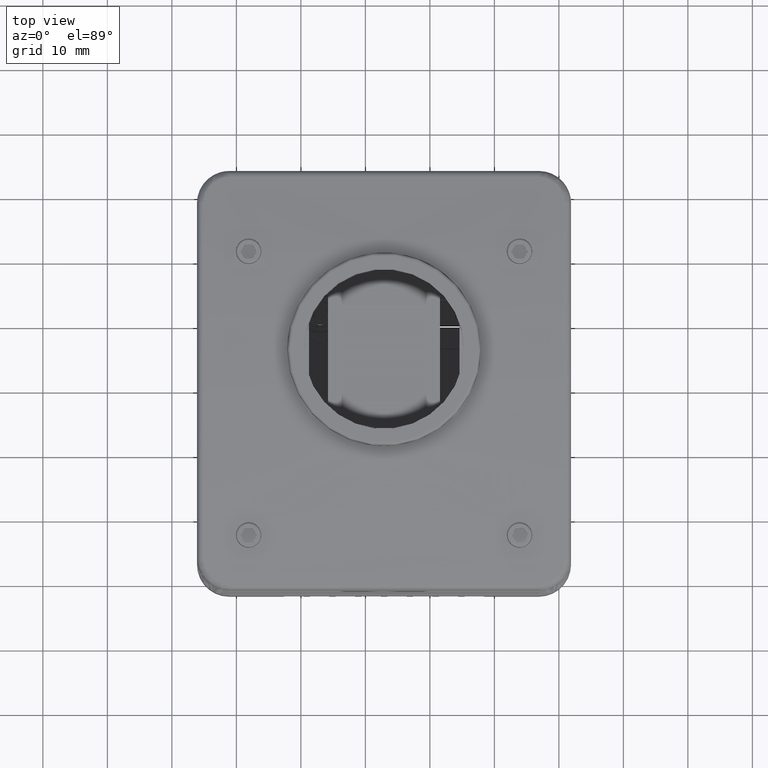
[diagram: clean part render]
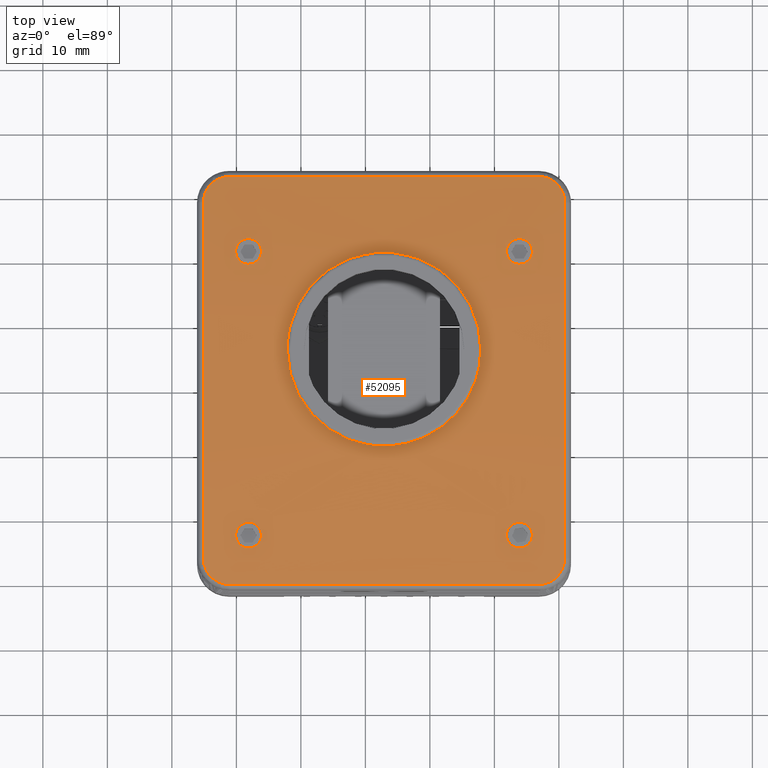
[diagram: same view with one face highlighted and labeled with its STEP entity id]
A machine part, top view. The second image highlights one B-rep face of the part: STEP entity #52095.
In plain terms, the highlighted cylindrical surface (partial cylindrical patch) has radius 246.258 mm, axis along (1, 0, 0).
Its self-contained STEP definition (entity closure, byte-faithful):
#16 = EDGE_CURVE ( 'NONE', #37723, #63241, #7341, .T. ) ;
#407 = CARTESIAN_POINT ( 'NONE',  ( 27.87221905281704800, -28.65296333922606200, 2.481542258418159000 ) ) ;
#429 = B_SPLINE_CURVE_WITH_KNOTS ( 'NONE', 3,
 ( #11356, #43682, #17004, #22384, #59716, #27762, #65133, #33139, #1024, #38501, #6394, #43912, #11817, #49266, #17232, #54572, #22615, #59961, #28001, #65361, #33375, #1258, #38733, #6634, #44144, #12046, #49495, #17475, #54809, #22842 ),
 .UNSPECIFIED., .F., .F.,
 ( 4, 2, 2, 2, 2, 2, 2, 2, 2, 2, 2, 2, 2, 2, 4 ),
 ( 0.0000000000000000000, 0.0003914982582811863100, 0.0007829965165623726300, 0.001174494774843558800, 0.001565993033124745300, 0.002348989549687124900, 0.003131986066249504800, 0.003523484324530700000, 0.003914982582811895100, 0.004306480841093090700, 0.004697979099374286300, 0.005089477357655481000, 0.005480975615936676600, 0.005872473874217872200, 0.006263972132499066900 ),
 .UNSPECIFIED. ) ;
#941 = ORIENTED_EDGE ( 'NONE', *, *, #46395, .T. ) ;
#1024 = CARTESIAN_POINT ( 'NONE',  ( 22.50741972509663200, 21.32087590457438300, 3.229325072555026700 ) ) ;
#1064 = CARTESIAN_POINT ( 'NONE',  ( 22.73694883208375100, -22.99997199358562500, 3.077616166211759800 ) ) ;
#1087 = CARTESIAN_POINT ( 'NONE',  ( -19.00000000000000400, 20.13193937296505700, 3.329767006478465200 ) ) ;
#1258 = CARTESIAN_POINT ( 'NONE',  ( 19.49163073484433200, 21.31994413899537100, 3.229406457088765500 ) ) ;
#1290 = CARTESIAN_POINT ( 'NONE',  ( 20.11290075196628600, -22.20270335062617700, 3.151079743748523400 ) ) ;
#1319 = CARTESIAN_POINT ( 'NONE',  ( -19.20206702972115700, 20.88576982610644400, 3.266762068866864600 ) ) ;
#1550 = CARTESIAN_POINT ( 'NONE',  ( -22.00399631210109800, 21.73464809231767300, 3.193007652865641300 ) ) ;
#1551 = CARTESIAN_POINT ( 'NONE',  ( -22.98739581881234200, 19.74026346499018900, 3.361578185366997900 ) ) ;
#1603 = CARTESIAN_POINT ( 'NONE',  ( 24.00000000000000000, -31.62843589917498800, 2.114457002495436600 ) ) ;
#1788 = CARTESIAN_POINT ( 'NONE',  ( -20.73782990089620500, 17.99975738356088000, 3.495307836988398100 ) ) ;
#1848 = CARTESIAN_POINT ( 'NONE',  ( -14.23599354219704700, -0.02835573895239222300, 4.155706961984092700 ) ) ;
#1874 = VECTOR ( 'NONE', #41021, 1000.000000000000000 ) ;
#1997 = CARTESIAN_POINT ( 'NONE',  ( 14.21405427225119800, 9.617050302707280500, 3.966612506281427900 ) ) ;
#2079 = CARTESIAN_POINT ( 'NONE',  ( -6.201620303658300400, -8.866801893129938600, 3.994407353467100300 ) ) ;
#2235 = CARTESIAN_POINT ( 'NONE',  ( 5.306367802213980400, 18.83860260977376900, 3.432461558192910100 ) ) ;
#2306 = CARTESIAN_POINT ( 'NONE',  ( 6.192979866466197700, -8.870775621002289700, 3.994264351463500800 ) ) ;
#2460 = CARTESIAN_POINT ( 'NONE',  ( -5.275377573058691800, 18.85044770628472200, 3.431553242800611700 ) ) ;
#2539 = CARTESIAN_POINT ( 'NONE',  ( 14.51909141795159300, 0.9068594972434365100, 4.154222431932829800 ) ) ;
#2680 = CARTESIAN_POINT ( 'NONE',  ( -24.00000000000000400, -31.62843589917497400, 2.114457002495437900 ) ) ;
#2694 = CARTESIAN_POINT ( 'NONE',  ( -14.21072304993562500, 9.626929951313435700, 3.966227107716268300 ) ) ;
#2964 = CARTESIAN_POINT ( 'NONE',  ( -19.26305116791623500, -22.99997199358562500, 3.077616166211759800 ) ) ;
#3198 = CARTESIAN_POINT ( 'NONE',  ( -21.88709924803371400, -22.20270335062617700, 3.151079743748523400 ) ) ;
#3441 = CARTESIAN_POINT ( 'NONE',  ( -27.47484094343414200, 29.61887904179538500, 2.366413970540836700 ) ) ;
#3642 = CARTESIAN_POINT ( 'NONE',  ( -27.02085804533519900, -30.25772095195045700, 2.288139553460989600 ) ) ;
#3753 = CARTESIAN_POINT ( 'NONE',  ( -24.00000000000001100, 31.62843589917498800, 2.114457002495436100 ) ) ;
#3829 = CARTESIAN_POINT ( 'NONE',  ( -22.89826951670503500, -24.64301901280795100, 2.917933858223057200 ) ) ;
#4050 = CARTESIAN_POINT ( 'NONE',  ( -20.11270955424230100, -25.79722389188082900, 2.799078373292954500 ) ) ;
#4166 = CARTESIAN_POINT ( 'NONE',  ( 19.39905157878768400, -25.22674305524583700, 2.858564150661086200 ) ) ;
#4341 = CARTESIAN_POINT ( 'NONE',  ( 27.97434677428030600, 28.13556459879583500, 2.541597430123375500 ) ) ;
#4398 = CARTESIAN_POINT ( 'NONE',  ( 22.21967991202564700, -25.59042879121902200, 2.820778767208242900 ) ) ;
#4461 = CARTESIAN_POINT ( 'NONE',  ( 19.01260418118766200, 19.74026346499019600, 3.361578185366997500 ) ) ;
#4571 = CARTESIAN_POINT ( 'NONE',  ( 25.30011364179865300, 31.41942075745012600, 2.141456581381208800 ) ) ;
#4697 = CARTESIAN_POINT ( 'NONE',  ( 21.26217009910380500, 17.99975738356088700, 3.495307836988398500 ) ) ;
#4789 = B_SPLINE_CURVE_WITH_KNOTS ( 'NONE', 3,
 ( #5972, #16815, #59755, #27796, #65164, #33175, #1064, #38531, #6433, #43951, #11852, #49302, #17266, #54613, #22654, #59999, #28031, #65400, #33414, #1290, #38772, #6675, #44184, #12079, #49529, #17514, #54849, #22879, #60228, #28269, #65621, #33638 ),
 .UNSPECIFIED., .F., .F.,
 ( 4, 2, 2, 2, 2, 2, 2, 2, 2, 2, 2, 2, 2, 2, 2, 4 ),
 ( 0.0000000000000000000, 0.0003916619847549815700, 0.0007833239695099631400, 0.001174985954264944800, 0.001566647939019926300, 0.001958309923774907800, 0.002349971908529889500, 0.003133295878039846900, 0.003524957862794825600, 0.003916619847549804300, 0.004308281832304783000, 0.004699943817059762600, 0.005091605801814740400, 0.005483267786569719900, 0.005874929771324697800, 0.006266591756079677300 ),
 .UNSPECIFIED. ) ;
#5173 = FACE_OUTER_BOUND ( 'NONE', #24963, .T. ) ;
#5327 = CARTESIAN_POINT ( 'NONE',  ( 24.26563040659510800, -31.62843589917498100, 2.114457002495436600 ) ) ;
#5509 = CARTESIAN_POINT ( 'NONE',  ( 27.99999999999998900, -27.61212657864482600, 2.601093250368926100 ) ) ;
#5567 = CARTESIAN_POINT ( 'NONE',  ( 25.04018928460663300, -31.49915739890449400, 2.131170397822759600 ) ) ;
#5670 = B_SPLINE_CURVE_WITH_KNOTS ( 'NONE', 3,
 ( #46127, #35349, #8620, #51424, #19429, #56787, #24828, #62192, #30202, #67571, #35580, #3441, #40940, #8848, #46346, #14262, #51649, #19669 ),
 .UNSPECIFIED., .F., .F.,
 ( 4, 2, 2, 2, 2, 2, 2, 2, 4 ),
 ( 0.0000000000000000000, 0.0007854478905420808200, 0.001570895781084161600, 0.002356343671626242400, 0.003141791562168323300, 0.003927239452710403800, 0.004712687343252484700, 0.005498135233794565700, 0.006283583124336646600 ),
 .UNSPECIFIED. ) ;
#5786 = CARTESIAN_POINT ( 'NONE',  ( 28.00000000000000700, -27.87599883398958400, 2.571318394912638400 ) ) ;
#5972 = CARTESIAN_POINT ( 'NONE',  ( 23.00000000000000000, -24.00000000000000400, 2.981723380235535600 ) ) ;
#6394 = CARTESIAN_POINT ( 'NONE',  ( 22.00767491814644900, 21.74717791471865900, 3.191906857225328400 ) ) ;
#6433 = CARTESIAN_POINT ( 'NONE',  ( 22.50784426535909700, -22.67960561343845400, 3.107451143778421800 ) ) ;
#6464 = CARTESIAN_POINT ( 'NONE',  ( -19.00000000000000400, 20.00000000000000000, 3.340518038701737700 ) ) ;
#6634 = CARTESIAN_POINT ( 'NONE',  ( 19.26426283161844600, 21.00208432336254600, 3.256827745967101300 ) ) ;
#6675 = CARTESIAN_POINT ( 'NONE',  ( 19.77880691984193400, -22.41075112826298000, 3.132162092154829700 ) ) ;
#6698 = CARTESIAN_POINT ( 'NONE',  ( -19.40820988067491700, 21.21788980582061900, 3.238260090950952500 ) ) ;
#6837 = FACE_BOUND ( 'NONE', #45967, .T. ) ;
#6928 = CARTESIAN_POINT ( 'NONE',  ( -22.32177218912404700, 21.50676761651978500, 3.213099496578858600 ) ) ;
#6929 = CARTESIAN_POINT ( 'NONE',  ( -22.89815155644264200, 19.35661453699198400, 3.392125023383918400 ) ) ;
#7169 = CARTESIAN_POINT ( 'NONE',  ( -20.11338091784891100, 18.20245117466334200, 3.480373698588378400 ) ) ;
#7241 = CARTESIAN_POINT ( 'NONE',  ( -13.45662458931177400, -1.845274545402938000, 4.147482180308911900 ) ) ;
#7341 = B_SPLINE_CURVE_WITH_KNOTS ( 'NONE', 3,
 ( #62925, #57518, #30710, #30940, #68303, #36291, #4166, #41678, #9577, #47058, #15001, #52376, #20399, #57731, #25796, #63160, #31163, #68532, #36515, #4398, #41910, #9814, #47276, #15241, #52610, #20618, #57966, #26024 ),
 .UNSPECIFIED., .F., .F.,
 ( 4, 2, 2, 2, 2, 2, 2, 2, 2, 2, 2, 2, 2, 4 ),
 ( 0.006266591756079677300, 0.006658299243596522600, 0.007050006731113367900, 0.007833421706147057600, 0.008225129193663895100, 0.008616836681180732600, 0.009008544168697571800, 0.009400251656214409300, 0.01018366663124807600, 0.01057537411876490400, 0.01096708160628173300, 0.01135878909379856400, 0.01175049658131539400, 0.01253391155634904800 ),
 .UNSPECIFIED. ) ;
#7402 = CARTESIAN_POINT ( 'NONE',  ( 13.48862810317668200, 11.43422063286007000, 3.890080018441355800 ) ) ;
#7473 = CARTESIAN_POINT ( 'NONE',  ( -3.904954814888811600, -9.715934760480672900, 3.962349748239482100 ) ) ;
#7628 = CARTESIAN_POINT ( 'NONE',  ( 3.894980379170173800, 19.29395807867614500, 3.397070324937371000 ) ) ;
#7703 = CARTESIAN_POINT ( 'NONE',  ( 7.510619541348610500, -8.193576220672154500, 4.017778933269204900 ) ) ;
#7870 = CARTESIAN_POINT ( 'NONE',  ( -7.509686769907485600, 17.82155279275389500, 3.508905587659430800 ) ) ;
#7944 = CARTESIAN_POINT ( 'NONE',  ( 14.87927035624310300, 2.837394455185770600, 4.138161312050818300 ) ) ;
#8100 = CARTESIAN_POINT ( 'NONE',  ( -14.61783878533372400, 8.199999696371119000, 4.017927202107776100 ) ) ;
#8124 = ORIENTED_EDGE ( 'NONE', *, *, #25214, .T. ) ;
#8378 = CARTESIAN_POINT ( 'NONE',  ( -19.49215573464089600, -22.67960561343845400, 3.107451143778421800 ) ) ;
#8515 = EDGE_CURVE ( 'NONE', #34148, #27591, #429, .T. ) ;
#8602 = CARTESIAN_POINT ( 'NONE',  ( -22.22119308015805600, -22.41075112826298000, 3.132162092154829700 ) ) ;
#8620 = CARTESIAN_POINT ( 'NONE',  ( -24.52671676196103300, 31.60213235724319200, 2.117867612774976900 ) ) ;
#8848 = CARTESIAN_POINT ( 'NONE',  ( -27.79596102399853300, 28.90499269377809100, 2.451867865181610800 ) ) ;
#9053 = CARTESIAN_POINT ( 'NONE',  ( -26.45233784757346000, -30.79605167933717200, 2.220861395131992200 ) ) ;
#9232 = CARTESIAN_POINT ( 'NONE',  ( -22.60094842121230100, -25.22674305524583700, 2.858564150661096800 ) ) ;
#9284 = B_SPLINE_CURVE_WITH_KNOTS ( 'NONE', 3,
 ( #32304, #5327, #37658, #5567, #43076, #10973, #48420, #16393, #53754, #21765, #59104, #27152, #64519, #32538, #407, #37885, #5786, #43304 ),
 .UNSPECIFIED., .F., .F.,
 ( 4, 2, 2, 2, 2, 2, 2, 2, 4 ),
 ( 0.0000000000000000000, 0.0007854478905420811500, 0.001570895781084162300, 0.002356343671626243700, 0.003141791562168324600, 0.003927239452710405500, 0.004712687343252487300, 0.005498135233794568300, 0.006283583124336649200 ),
 .UNSPECIFIED. ) ;
#9458 = CARTESIAN_POINT ( 'NONE',  ( -19.78032008797432400, -25.59042879121901500, 2.820778767208243400 ) ) ;
#9477 = B_SPLINE_CURVE_WITH_KNOTS ( 'NONE', 3,
 ( #51618, #19630, #56985, #25043, #62389, #30393, #67777, #35783, #3642, #41135, #9053, #46531, #14453, #51848, #19868, #57220, #25276, #62623 ),
 .UNSPECIFIED., .F., .F.,
 ( 4, 2, 2, 2, 2, 2, 2, 2, 4 ),
 ( 0.0000000000000000000, 0.0007855308358839515700, 0.001571061671767903100, 0.002356592507651854800, 0.003142123343535806300, 0.003927654179419757700, 0.004713185015303709600, 0.005498715851187660700, 0.006284246687071612600 ),
 .UNSPECIFIED. ) ;
#9577 = CARTESIAN_POINT ( 'NONE',  ( 19.77759171015288300, -25.58835628398693600, 2.820995398234102500 ) ) ;
#9633 = CARTESIAN_POINT ( 'NONE',  ( 19.00000000000001100, 19.86973843002554900, 3.351132355753393600 ) ) ;
#9757 = CARTESIAN_POINT ( 'NONE',  ( 27.99999999999999300, 27.61212657864483000, 2.601093250368926100 ) ) ;
#9814 = CARTESIAN_POINT ( 'NONE',  ( 22.50716778263350200, -25.32116855462352600, 2.848768887152167900 ) ) ;
#9880 = CARTESIAN_POINT ( 'NONE',  ( 19.10184844355736200, 19.35661453699198700, 3.392125023383918400 ) ) ;
#10003 = CARTESIAN_POINT ( 'NONE',  ( 24.52843681762643900, 31.60212272461534200, 2.117869070052724300 ) ) ;
#10127 = CARTESIAN_POINT ( 'NONE',  ( 21.88661908215110000, 18.20245117466335200, 3.480373698588380200 ) ) ;
#10200 = CARTESIAN_POINT ( 'NONE',  ( -15.00000000000000000, 4.799999999999999800, 4.107231761522982100 ) ) ;
#10246 = VERTEX_POINT ( 'NONE', #1603 ) ;
#10379 = CARTESIAN_POINT ( 'NONE',  ( 23.99999999999999300, 31.62843589917501000, 2.114457002495433900 ) ) ;
#10496 = EDGE_CURVE ( 'NONE', #36730, #65070, #5670, .T. ) ;
#10973 = CARTESIAN_POINT ( 'NONE',  ( 25.78072699913088800, -31.21816811858529000, 2.167261298425407800 ) ) ;
#11356 = CARTESIAN_POINT ( 'NONE',  ( 23.00000000000000000, 20.00000000000000400, 3.340518038701738100 ) ) ;
#11817 = CARTESIAN_POINT ( 'NONE',  ( 21.26213794501796500, 21.99989338468088100, 3.169350167990354200 ) ) ;
#11852 = CARTESIAN_POINT ( 'NONE',  ( 22.22281019386883800, -22.41190650544010400, 3.132056700207945400 ) ) ;
#11968 = VERTEX_POINT ( 'NONE', #57630 ) ;
#12046 = CARTESIAN_POINT ( 'NONE',  ( 19.10169595905753300, 20.64312121272049100, 3.287295279596437900 ) ) ;
#12079 = CARTESIAN_POINT ( 'NONE',  ( 19.49123508801386300, -22.68050545850213200, 3.107368325165674100 ) ) ;
#12103 = CARTESIAN_POINT ( 'NONE',  ( -19.76919302924002200, 21.59788101318937200, 3.205146737904964300 ) ) ;
#12351 = CARTESIAN_POINT ( 'NONE',  ( -22.59114551453944100, 21.21869293113203300, 3.238190476083231400 ) ) ;
#12354 = CARTESIAN_POINT ( 'NONE',  ( -22.60045940532211600, 18.77260140591930000, 3.437513924374464100 ) ) ;
#12469 = DIRECTION ( 'NONE',  ( 1.000000000000000000, 1.067522139062650400E-016, -0.0000000000000000000 ) ) ;
#12597 = CARTESIAN_POINT ( 'NONE',  ( -19.78103149086517500, 18.40902943654939200, 3.464980599821954500 ) ) ;
#12661 = CARTESIAN_POINT ( 'NONE',  ( -12.49090242185871300, -3.548172253586010100, 4.129457947598941000 ) ) ;
#12807 = CARTESIAN_POINT ( 'NONE',  ( 12.20647926226417800, 13.53190903967400200, 3.782290952021368100 ) ) ;
#12888 = CARTESIAN_POINT ( 'NONE',  ( -1.973926540562157500, -10.07776965838165700, 3.947725777932891600 ) ) ;
#13049 = CARTESIAN_POINT ( 'NONE',  ( 1.975595561481464000, 19.70159591388245000, 3.364726273962339600 ) ) ;
#13130 = CARTESIAN_POINT ( 'NONE',  ( 9.149153876633155500, -7.126771435546866800, 4.051469334608190900 ) ) ;
#13285 = CARTESIAN_POINT ( 'NONE',  ( -9.124274822374694300, 16.71599208700052900, 3.586221455940271400 ) ) ;
#13361 = CARTESIAN_POINT ( 'NONE',  ( 15.00000000000000000, 4.311729801633215500, 4.116750791313105400 ) ) ;
#13399 = VERTEX_POINT ( 'NONE', #10200 ) ;
#13514 = CARTESIAN_POINT ( 'NONE',  ( -15.00000000000000400, 5.782011466447264600, 4.088087041172159700 ) ) ;
#13768 = CARTESIAN_POINT ( 'NONE',  ( -19.77718980613115100, -22.41190650544010400, 3.132056700207972900 ) ) ;
#14019 = CARTESIAN_POINT ( 'NONE',  ( -22.50876491198613400, -22.68050545850213200, 3.107368325165674100 ) ) ;
#14094 = EDGE_CURVE ( 'NONE', #63241, #37723, #4789, .T. ) ;
#14262 = CARTESIAN_POINT ( 'NONE',  ( -27.97434975268739500, 28.13692876086082600, 2.541443383217059500 ) ) ;
#14300 = VERTEX_POINT ( 'NONE', #2680 ) ;
#14453 = CARTESIAN_POINT ( 'NONE',  ( -25.78243110002373900, -31.21720286600233500, 2.167384488437091400 ) ) ;
#14645 = CARTESIAN_POINT ( 'NONE',  ( -22.22240828984711300, -25.58835628398694000, 2.820995398234102500 ) ) ;
#14886 = CARTESIAN_POINT ( 'NONE',  ( -19.49283221736648400, -25.32116855462351900, 2.848768887152167900 ) ) ;
#14958 = B_SPLINE_CURVE_WITH_KNOTS ( 'NONE', 3,
 ( #44208, #54637, #1551, #39043, #6929, #44445, #12354, #49778, #17760, #55119, #23146, #60495, #28536, #65884, #33905, #1788, #39271, #7169, #44676, #12597, #50014, #17994, #55351, #23379, #60738, #28757, #66132, #34150 ),
 .UNSPECIFIED., .F., .F.,
 ( 4, 2, 2, 2, 2, 2, 2, 2, 2, 2, 2, 2, 2, 4 ),
 ( 0.006263972132499066000, 0.006655271112561828700, 0.007046570092624592300, 0.007829168052750117700, 0.008220467032812881300, 0.008611766012875643100, 0.009003064992938406700, 0.009394363973001168500, 0.01017696193312670600, 0.01056826091318947100, 0.01095955989325224000, 0.01135085887331500900, 0.01174215785337777600, 0.01252475581350331200 ),
 .UNSPECIFIED. ) ;
#15001 = CARTESIAN_POINT ( 'NONE',  ( 20.11009135520260600, -25.79589541836515600, 2.799218312178693800 ) ) ;
#15179 = CARTESIAN_POINT ( 'NONE',  ( 27.79777778947022100, 28.89996163710529900, 2.452464179005771100 ) ) ;
#15241 = CARTESIAN_POINT ( 'NONE',  ( 22.73563237458568100, -25.00239245500736400, 2.881518551110850100 ) ) ;
#15301 = CARTESIAN_POINT ( 'NONE',  ( 19.39954059467789100, 18.77260140591930700, 3.437513924374464600 ) ) ;
#15418 = CARTESIAN_POINT ( 'NONE',  ( 23.99999999999999300, 31.62843589917501000, 2.114457002495433900 ) ) ;
#15540 = CARTESIAN_POINT ( 'NONE',  ( 22.21896850913482900, 18.40902943654939200, 3.464980599821953600 ) ) ;
#15571 = B_SPLINE_CURVE_WITH_KNOTS ( 'NONE', 3,
 ( #63220, #9633, #4461, #41966, #9880, #47346, #15301, #52668, #20683, #58023, #26078, #63450, #31450, #68822, #36815, #4697, #42211, #10127, #47573, #15540, #52895, #20923, #58262, #26304, #63683, #31689, #69037, #37038 ),
 .UNSPECIFIED., .F., .F.,
 ( 4, 2, 2, 2, 2, 2, 2, 2, 2, 2, 2, 2, 2, 4 ),
 ( 0.006263972132499066900, 0.006655271112561839100, 0.007046570092624610500, 0.007829168052750154100, 0.008220467032812917700, 0.008611766012875683000, 0.009003064992938448300, 0.009394363973001211900, 0.01017696193312674100, 0.01056826091318950600, 0.01095955989325226800, 0.01135085887331503300, 0.01174215785337779900, 0.01252475581350331700 ),
 .UNSPECIFIED. ) ;
#16393 = CARTESIAN_POINT ( 'NONE',  ( 26.44575144505234500, -30.80106261015309600, 2.220229118654111700 ) ) ;
#16634 = CARTESIAN_POINT ( 'NONE',  ( -19.00000000000000400, 20.00000000000000000, 3.340518038701737700 ) ) ;
#16815 = CARTESIAN_POINT ( 'NONE',  ( 23.00000000000000400, -23.86820121851414100, 2.994629738325983700 ) ) ;
#17004 = CARTESIAN_POINT ( 'NONE',  ( 22.98707199814070600, 20.26167658526000200, 3.319088400453707300 ) ) ;
#17175 = VECTOR ( 'NONE', #64235, 1000.000000000000000 ) ;
#17217 = CARTESIAN_POINT ( 'NONE',  ( -18.99999999999998900, -24.00000000000000400, 2.981723380235535600 ) ) ;
#17232 = CARTESIAN_POINT ( 'NONE',  ( 20.73744359348957300, 21.98701603862111800, 3.170506212369487400 ) ) ;
#17266 = CARTESIAN_POINT ( 'NONE',  ( 21.88758362488827900, -22.20299710870211700, 3.151053107074169200 ) ) ;
#17345 = CARTESIAN_POINT ( 'NONE',  ( -94.03568087032886100, -2.199666958254316200E-014, -242.1045150059093800 ) ) ;
#17475 = CARTESIAN_POINT ( 'NONE',  ( 19.01303599880151700, 20.26267213394521600, 3.319006382137905200 ) ) ;
#17514 = CARTESIAN_POINT ( 'NONE',  ( 19.26395656080026000, -22.99844658000180400, 3.077759104127113500 ) ) ;
#17537 = CARTESIAN_POINT ( 'NONE',  ( -20.47415036006604800, 21.94718298126380800, 3.174092877652904500 ) ) ;
#17622 = EDGE_LOOP ( 'NONE', ( #61753, #51015 ) ) ;
#17759 = CARTESIAN_POINT ( 'NONE',  ( -22.79818909887873300, 20.88525651129109000, 3.266805789855834300 ) ) ;
#17760 = CARTESIAN_POINT ( 'NONE',  ( -22.22164681675882400, 18.41106141672282700, 3.464828361938549600 ) ) ;
#17902 = ORIENTED_EDGE ( 'NONE', *, *, #64291, .T. ) ;
#17984 = CARTESIAN_POINT ( 'NONE',  ( 14.99999999999999800, 5.777352010078989700, 4.088177879204304900 ) ) ;
#17994 = CARTESIAN_POINT ( 'NONE',  ( -19.49337377550867200, 18.67821067692289100, 3.444659838738893100 ) ) ;
#18062 = CARTESIAN_POINT ( 'NONE',  ( -11.28493741444041400, -5.094017131088216700, 4.101617256451033800 ) ) ;
#18228 = CARTESIAN_POINT ( 'NONE',  ( 11.29083833626296100, 14.68722071481472100, 3.715935619893363300 ) ) ;
#18303 = CARTESIAN_POINT ( 'NONE',  ( -0.4994122282866592700, -10.19966486074280200, 3.942698112038740100 ) ) ;
#18330 = AXIS2_PLACEMENT_3D ( 'NONE', #17345, #65697, #60305 ) ;
#18463 = CARTESIAN_POINT ( 'NONE',  ( -0.4755612601192628600, 19.80055237248668500, 3.356688389520746000 ) ) ;
#18543 = CARTESIAN_POINT ( 'NONE',  ( 11.30745669339352900, -5.105686270908850400, 4.102079397850054000 ) ) ;
#18684 = CARTESIAN_POINT ( 'NONE',  ( -10.25537100110211800, 15.75756613488116300, 3.649598249697834100 ) ) ;
#19197 = CARTESIAN_POINT ( 'NONE',  ( -20.11241637511171700, -22.20299710870211700, 3.151053107074169600 ) ) ;
#19418 = CARTESIAN_POINT ( 'NONE',  ( -22.73604343919973300, -22.99844658000180400, 3.077759104127114000 ) ) ;
#19429 = CARTESIAN_POINT ( 'NONE',  ( -25.29530147918768200, 31.42118414353466000, 2.141229903952491100 ) ) ;
#19457 = EDGE_CURVE ( 'NONE', #27163, #13399, #63126, .T. ) ;
#19473 = FACE_BOUND ( 'NONE', #17622, .T. ) ;
#19630 = CARTESIAN_POINT ( 'NONE',  ( -28.00000000000000400, -27.87603042080604600, 2.571314830714912100 ) ) ;
#19669 = CARTESIAN_POINT ( 'NONE',  ( -28.00000000000001400, 27.61212657864483000, 2.601093250368926100 ) ) ;
#19868 = CARTESIAN_POINT ( 'NONE',  ( -25.04825108139884200, -31.49719894914891000, 2.131423182568792400 ) ) ;
#20068 = CARTESIAN_POINT ( 'NONE',  ( -21.88990864479738700, -25.79589541836515200, 2.799218312178694700 ) ) ;
#20291 = CARTESIAN_POINT ( 'NONE',  ( -19.26436762541430900, -25.00239245500736000, 2.881518551110849600 ) ) ;
#20399 = CARTESIAN_POINT ( 'NONE',  ( 20.47958829738196200, -25.93552213206617200, 2.784467192670569100 ) ) ;
#20428 = CARTESIAN_POINT ( 'NONE',  ( 23.00000000000000000, -24.00000000000000400, 2.981723380235535600 ) ) ;
#20567 = CARTESIAN_POINT ( 'NONE',  ( 27.47693827994098100, 29.61494226548044000, 2.366889549501529200 ) ) ;
#20618 = CARTESIAN_POINT ( 'NONE',  ( 22.94716509994644200, -24.52552524818331700, 2.929811490816401700 ) ) ;
#20683 = CARTESIAN_POINT ( 'NONE',  ( 19.77835318324117300, 18.41106141672283100, 3.464828361938577100 ) ) ;
#20923 = CARTESIAN_POINT ( 'NONE',  ( 22.50662622449133800, 18.67821067692289100, 3.444659838738894000 ) ) ;
#21311 = ORIENTED_EDGE ( 'NONE', *, *, #21402, .F. ) ;
#21402 = EDGE_CURVE ( 'NONE', #27591, #34148, #15571, .T. ) ;
#21765 = CARTESIAN_POINT ( 'NONE',  ( 27.01887237828043100, -30.25998771389107100, 2.287858703519776200 ) ) ;
#22384 = CARTESIAN_POINT ( 'NONE',  ( 22.93641816450074700, 20.51692789947903600, 3.297881715428792000 ) ) ;
#22572 = CARTESIAN_POINT ( 'NONE',  ( -28.00000000000001400, 27.61212657864483000, 2.601093250368926100 ) ) ;
#22615 = CARTESIAN_POINT ( 'NONE',  ( 20.35559520277297100, 21.89788033175731000, 3.178484047571892300 ) ) ;
#22654 = CARTESIAN_POINT ( 'NONE',  ( 21.26226326066735700, -22.00010908814864400, 3.169330820325750900 ) ) ;
#22761 = B_SPLINE_CURVE_WITH_KNOTS ( 'NONE', 3,
 ( #6464, #1087, #28058, #65423, #33437, #1319, #38800, #6698, #44205, #12103, #49556, #17537, #54876, #22904, #60258, #28295, #65646, #33659, #1550, #39039, #6928, #44439, #12351, #49775, #17759, #55116, #23142, #60494, #28532, #65879 ),
 .UNSPECIFIED., .F., .F.,
 ( 4, 2, 2, 2, 2, 2, 2, 2, 2, 2, 2, 2, 2, 2, 4 ),
 ( 0.0000000000000000000, 0.0003914982582811862600, 0.0007829965165623725200, 0.001174494774843558800, 0.001565993033124745000, 0.002348989549687124900, 0.003131986066249504400, 0.003523484324530699500, 0.003914982582811895100, 0.004306480841093090700, 0.004697979099374285400, 0.005089477357655481000, 0.005480975615936675700, 0.005872473874217871300, 0.006263972132499066000 ),
 .UNSPECIFIED. ) ;
#22842 = CARTESIAN_POINT ( 'NONE',  ( 19.00000000000000400, 20.00000000000000400, 3.340518038701734600 ) ) ;
#22879 = CARTESIAN_POINT ( 'NONE',  ( 19.10153916628038600, -23.35735161046389400, 3.043834271633272700 ) ) ;
#22904 = CARTESIAN_POINT ( 'NONE',  ( -21.12984692994344400, 22.00005305876153700, 3.169335845918647400 ) ) ;
#23142 = CARTESIAN_POINT ( 'NONE',  ( -22.93599824917251700, 20.51858786257585300, 3.297743102370501100 ) ) ;
#23146 = CARTESIAN_POINT ( 'NONE',  ( -21.88916392506543900, 18.20373968118286000, 3.480278199912674200 ) ) ;
#23259 = EDGE_CURVE ( 'NONE', #27777, #42440, #32275, .T. ) ;
#23379 = CARTESIAN_POINT ( 'NONE',  ( -19.26471738211007400, 18.99699682071876300, 3.420209462339329300 ) ) ;
#23385 = ORIENTED_EDGE ( 'NONE', *, *, #67540, .T. ) ;
#23450 = CARTESIAN_POINT ( 'NONE',  ( -9.906474773321173500, -6.506225232138236300, 4.069036955791190700 ) ) ;
#23604 = CARTESIAN_POINT ( 'NONE',  ( 9.910824197514760000, 16.07018853548542100, 3.629306969322572100 ) ) ;
#23677 = CARTESIAN_POINT ( 'NONE',  ( 1.941478404920017600, -10.10649943863787000, 3.946617030911952400 ) ) ;
#23695 = ORIENTED_EDGE ( 'NONE', *, *, #51582, .T. ) ;
#23833 = CARTESIAN_POINT ( 'NONE',  ( -1.952291687551653600, 19.68054662179455900, 3.366344054082508500 ) ) ;
#23907 = CARTESIAN_POINT ( 'NONE',  ( 12.74253536574609000, -3.128839949783828600, 4.134473874734140100 ) ) ;
#24070 = CIRCLE ( 'NONE', #51445, 246.2585313167246300 ) ;
#24071 = CARTESIAN_POINT ( 'NONE',  ( -11.91709197700933500, 13.96220287979920000, 3.759243774390496700 ) ) ;
#24582 = CARTESIAN_POINT ( 'NONE',  ( -20.73773673933264000, -22.00010908814864400, 3.169330820325750900 ) ) ;
#24812 = CARTESIAN_POINT ( 'NONE',  ( -22.89846083371960700, -23.35735161046389400, 3.043834271633274000 ) ) ;
#24828 = CARTESIAN_POINT ( 'NONE',  ( -26.01075544475265000, 31.09403930490469700, 2.183116218336263800 ) ) ;
#24920 = CARTESIAN_POINT ( 'NONE',  ( -94.03568087032886100, 31.62843589917498800, 2.114457002495434800 ) ) ;
#24963 = EDGE_LOOP ( 'NONE', ( #65768, #8124, #941, #23385, #17902, #32039, #23695, #56743 ) ) ;
#25043 = CARTESIAN_POINT ( 'NONE',  ( -27.87381570747499300, -28.64625351569159400, 2.482325369593488600 ) ) ;
#25214 = EDGE_CURVE ( 'NONE', #49071, #14300, #9477, .T. ) ;
#25232 = CARTESIAN_POINT ( 'NONE',  ( -22.99999999999998200, -24.13020738896694800, 2.968972858803613900 ) ) ;
#25276 = CARTESIAN_POINT ( 'NONE',  ( -24.26566163447590800, -31.62843589917498800, 2.114457002495453900 ) ) ;
#25459 = CARTESIAN_POINT ( 'NONE',  ( -21.52041170261803100, -25.93552213206617600, 2.784467192670570000 ) ) ;
#25659 = EDGE_LOOP ( 'NONE', ( #67880, #31350 ) ) ;
#25689 = CARTESIAN_POINT ( 'NONE',  ( -19.05283490005355400, -24.52552524818331400, 2.929811490816401700 ) ) ;
#25796 = CARTESIAN_POINT ( 'NONE',  ( 20.86594142301226600, -25.99987103348722400, 2.777642270869048200 ) ) ;
#25974 = CARTESIAN_POINT ( 'NONE',  ( 27.02085804533518900, 30.25772095195046100, 2.288139553460989600 ) ) ;
#26024 = CARTESIAN_POINT ( 'NONE',  ( 23.00000000000000000, -24.00000000000000400, 2.981723380235535600 ) ) ;
#26078 = CARTESIAN_POINT ( 'NONE',  ( 20.11083607493456800, 18.20373968118287100, 3.480278199912675100 ) ) ;
#26304 = CARTESIAN_POINT ( 'NONE',  ( 22.73528261788994000, 18.99699682071875600, 3.420209462339330700 ) ) ;
#27152 = CARTESIAN_POINT ( 'NONE',  ( 27.47484094343413500, -29.61887904179537000, 2.366413970540838500 ) ) ;
#27163 = VERTEX_POINT ( 'NONE', #51927 ) ;
#27307 = CARTESIAN_POINT ( 'NONE',  ( 27.99999999999998200, -2.455300919844099900E-015, -242.1045150059093800 ) ) ;
#27591 = VERTEX_POINT ( 'NONE', #29269 ) ;
#27762 = CARTESIAN_POINT ( 'NONE',  ( 22.79793297027884300, 20.88576982610644400, 3.266762068866864600 ) ) ;
#27777 = VERTEX_POINT ( 'NONE', #52320 ) ;
#27796 = CARTESIAN_POINT ( 'NONE',  ( 22.93652616663674900, -23.48350053876235000, 3.031785581161336600 ) ) ;
#28001 = CARTESIAN_POINT ( 'NONE',  ( 19.99600368789890600, 21.73464809231767700, 3.193007652865641700 ) ) ;
#28031 = CARTESIAN_POINT ( 'NONE',  ( 20.73735666503420600, -22.01299151127745200, 3.168176327148032500 ) ) ;
#28058 = CARTESIAN_POINT ( 'NONE',  ( -19.01292800185929700, 20.26167658526000200, 3.319088400453707300 ) ) ;
#28269 = CARTESIAN_POINT ( 'NONE',  ( 19.01300751311832500, -23.73758650412503000, 3.007311998684650600 ) ) ;
#28295 = CARTESIAN_POINT ( 'NONE',  ( -21.51955622712066000, 21.93577631228335500, 3.175094063999241100 ) ) ;
#28532 = CARTESIAN_POINT ( 'NONE',  ( -23.00000000000000400, 20.13032790874589400, 3.329898316059219700 ) ) ;
#28536 = CARTESIAN_POINT ( 'NONE',  ( -21.51984902718889000, 18.06433528549388600, 3.490567792168472600 ) ) ;
#28603 = CARTESIAN_POINT ( 'NONE',  ( -14.87848426340983800, 2.831695392791387300, 4.138224880148393400 ) ) ;
#28733 = LINE ( 'NONE', #24920, #1874 ) ;
#28748 = CARTESIAN_POINT ( 'NONE',  ( 14.90538755638911700, 6.747237920932428200, 4.063448063579287800 ) ) ;
#28757 = CARTESIAN_POINT ( 'NONE',  ( -19.05289038659296000, 19.47418054135758300, 3.382915784074730100 ) ) ;
#28833 = CARTESIAN_POINT ( 'NONE',  ( -7.937507208362715600, -7.937089843104909700, 4.026223382288883100 ) ) ;
#28983 = CARTESIAN_POINT ( 'NONE',  ( 8.752579579403496600, 16.99158793236466300, 3.567269234486879700 ) ) ;
#29065 = CARTESIAN_POINT ( 'NONE',  ( 3.874969385625168300, -9.699222203278449000, 3.962975240198507400 ) ) ;
#29168 = AXIS2_PLACEMENT_3D ( 'NONE', #44555, #12469, #49894 ) ;
#29226 = CARTESIAN_POINT ( 'NONE',  ( -3.395968669420534400, 19.41870035151968900, 3.387210750510877100 ) ) ;
#29265 = CARTESIAN_POINT ( 'NONE',  ( -18.99999999999998900, -24.00000000000000400, 2.981723380235535600 ) ) ;
#29269 = CARTESIAN_POINT ( 'NONE',  ( 19.00000000000000400, 20.00000000000000400, 3.340518038701734600 ) ) ;
#29304 = CARTESIAN_POINT ( 'NONE',  ( 13.45887836782972400, -1.840847765152563000, 4.147518311767524500 ) ) ;
#29452 = CARTESIAN_POINT ( 'NONE',  ( -12.99165503756557200, 12.31404532418534200, 3.846330940571229400 ) ) ;
#29469 = VERTEX_POINT ( 'NONE', #16634 ) ;
#29730 = CARTESIAN_POINT ( 'NONE',  ( -19.06347383336323600, -23.48350053876234300, 3.031785581161337000 ) ) ;
#29951 = CARTESIAN_POINT ( 'NONE',  ( -21.26264333496578400, -22.01299151127745200, 3.168176327148032500 ) ) ;
#30186 = CARTESIAN_POINT ( 'NONE',  ( -22.98699248688165800, -23.73758650412503000, 3.007311998684650600 ) ) ;
#30202 = CARTESIAN_POINT ( 'NONE',  ( -26.65113079792893600, 30.63095125606688300, 2.241641110618412600 ) ) ;
#30347 = ORIENTED_EDGE ( 'NONE', *, *, #16, .F. ) ;
#30393 = CARTESIAN_POINT ( 'NONE',  ( -27.59878492711158800, -29.38481079694166100, 2.394680790529018800 ) ) ;
#30710 = CARTESIAN_POINT ( 'NONE',  ( 19.01259379949340900, -24.25961578866380800, 2.956195815281272400 ) ) ;
#30827 = CARTESIAN_POINT ( 'NONE',  ( -21.13405857698772600, -25.99987103348721400, 2.777642270869047400 ) ) ;
#30940 = CARTESIAN_POINT ( 'NONE',  ( 19.06348295899812600, -24.51680316702292500, 2.930599434593352800 ) ) ;
#31054 = CARTESIAN_POINT ( 'NONE',  ( -18.99999999999998900, -24.00000000000000400, 2.981723380235535600 ) ) ;
#31163 = CARTESIAN_POINT ( 'NONE',  ( 21.52279353275315900, -25.94830160212227100, 2.783133003230878100 ) ) ;
#31332 = CARTESIAN_POINT ( 'NONE',  ( 26.45233784757344600, 30.79605167933716800, 2.220861395131991800 ) ) ;
#31350 = ORIENTED_EDGE ( 'NONE', *, *, #55548, .F. ) ;
#31426 = LINE ( 'NONE', #32245, #17175 ) ;
#31450 = CARTESIAN_POINT ( 'NONE',  ( 20.48015097281111700, 18.06433528549389000, 3.490567792168473000 ) ) ;
#31689 = CARTESIAN_POINT ( 'NONE',  ( 22.94710961340704000, 19.47418054135759400, 3.382915784074730100 ) ) ;
#32039 = ORIENTED_EDGE ( 'NONE', *, *, #23259, .T. ) ;
#32245 = CARTESIAN_POINT ( 'NONE',  ( -94.03568087032886100, -31.62843589917498800, 2.114457002495434800 ) ) ;
#32275 = B_SPLINE_CURVE_WITH_KNOTS ( 'NONE', 3,
 ( #9757, #41859, #4341, #47228, #15179, #52553, #20567, #57911, #25974, #63332, #31332, #68703, #36695, #4571, #42090, #10003, #47456, #15418 ),
 .UNSPECIFIED., .F., .F.,
 ( 4, 2, 2, 2, 2, 2, 2, 2, 4 ),
 ( 0.0000000000000000000, 0.0007855308358839515700, 0.001571061671767903100, 0.002356592507651854800, 0.003142123343535806300, 0.003927654179419757700, 0.004713185015303709600, 0.005498715851187660700, 0.006284246687071612600 ),
 .UNSPECIFIED. ) ;
#32304 = CARTESIAN_POINT ( 'NONE',  ( 24.00000000000000000, -31.62843589917498800, 2.114457002495436600 ) ) ;
#32538 = CARTESIAN_POINT ( 'NONE',  ( 27.79596102399853000, -28.90499269377808000, 2.451867865181610400 ) ) ;
#32714 = DIRECTION ( 'NONE',  ( 1.549750023580111200E-016, -1.000000000000000000, 0.0000000000000000000 ) ) ;
#33139 = CARTESIAN_POINT ( 'NONE',  ( 22.59179011932509000, 21.21788980582061900, 3.238260090950952500 ) ) ;
#33175 = CARTESIAN_POINT ( 'NONE',  ( 22.79819790899882600, -23.11477429848937600, 3.066825538619807600 ) ) ;
#33375 = CARTESIAN_POINT ( 'NONE',  ( 19.67822781087596300, 21.50676761651978800, 3.213099496578885700 ) ) ;
#33414 = CARTESIAN_POINT ( 'NONE',  ( 20.35534751801789000, -22.10220035325467700, 3.160157402550050100 ) ) ;
#33437 = CARTESIAN_POINT ( 'NONE',  ( -19.10191223854132400, 20.64374995165600900, 3.287242358654956800 ) ) ;
#33638 = CARTESIAN_POINT ( 'NONE',  ( 19.00000000000000400, -24.00000000000000000, 2.981723380235496100 ) ) ;
#33659 = CARTESIAN_POINT ( 'NONE',  ( -21.88677538940823900, 21.79745283807401200, 3.187429088196568100 ) ) ;
#33905 = CARTESIAN_POINT ( 'NONE',  ( -21.13385156566496900, 18.00012258382173900, 3.495281071474451600 ) ) ;
#33964 = CARTESIAN_POINT ( 'NONE',  ( 23.00000000000000000, 20.00000000000000400, 3.340518038701738100 ) ) ;
#33971 = CARTESIAN_POINT ( 'NONE',  ( -14.51924415911027700, 0.9079830635285823800, 4.154209817930631500 ) ) ;
#34142 = CARTESIAN_POINT ( 'NONE',  ( 14.49981576702363600, 8.672809728825781100, 4.001701541038606500 ) ) ;
#34148 = VERTEX_POINT ( 'NONE', #33964 ) ;
#34150 = CARTESIAN_POINT ( 'NONE',  ( -19.00000000000000400, 20.00000000000000000, 3.340518038701737700 ) ) ;
#34212 = CARTESIAN_POINT ( 'NONE',  ( -6.651190127243517700, -8.653760625157108400, 4.002028435143208700 ) ) ;
#34368 = CARTESIAN_POINT ( 'NONE',  ( 6.663164724320694200, 18.27448870297676100, 3.475308183928413900 ) ) ;
#34450 = CARTESIAN_POINT ( 'NONE',  ( 5.281851183216543800, -9.247959061180386800, 3.980379115021578200 ) ) ;
#34530 = ORIENTED_EDGE ( 'NONE', *, *, #19457, .F. ) ;
#34585 = CARTESIAN_POINT ( 'NONE',  ( -4.809392374475582900, 19.01654889871870300, 3.418712756674898500 ) ) ;
#34664 = CARTESIAN_POINT ( 'NONE',  ( 14.23572167697460800, -0.02817584833534967200, 4.155691008855513700 ) ) ;
#34818 = CARTESIAN_POINT ( 'NONE',  ( -13.87881857889559500, 10.55342725515141600, 3.929036991170713500 ) ) ;
#35099 = CARTESIAN_POINT ( 'NONE',  ( -19.20180209100116600, -23.11477429848937600, 3.066825538619807600 ) ) ;
#35332 = CARTESIAN_POINT ( 'NONE',  ( -21.64465248198209900, -22.10220035325467700, 3.160157402550050100 ) ) ;
#35349 = CARTESIAN_POINT ( 'NONE',  ( -24.26563040659511800, 31.62843589917498100, 2.114457002495435700 ) ) ;
#35563 = CARTESIAN_POINT ( 'NONE',  ( -22.99999999999998600, -24.00000000000000000, 2.981723380235496500 ) ) ;
#35580 = CARTESIAN_POINT ( 'NONE',  ( -27.18378005822941600, 30.05772590098366200, 2.312845719474461600 ) ) ;
#35783 = CARTESIAN_POINT ( 'NONE',  ( -27.18886256314665300, -30.05081823297148700, 2.313693755655752400 ) ) ;
#35971 = CARTESIAN_POINT ( 'NONE',  ( -22.93651704100185600, -24.51680316702292100, 2.930599434593352400 ) ) ;
#36078 = B_SPLINE_CURVE_WITH_KNOTS ( 'NONE', 3,
 ( #67965, #25232, #46496, #35971, #3829, #41326, #9232, #46724, #14645, #52037, #20068, #57402, #25459, #62819, #30827, #68191, #36187, #4050, #41562, #9458, #46950, #14886, #52263, #20291, #57631, #25689, #63040, #31054 ),
 .UNSPECIFIED., .F., .F.,
 ( 4, 2, 2, 2, 2, 2, 2, 2, 2, 2, 2, 2, 2, 4 ),
 ( 0.006266591756079677300, 0.006658299243596520900, 0.007050006731113363600, 0.007833421706147054200, 0.008225129193663891600, 0.008616836681180730900, 0.009008544168697568300, 0.009400251656214407600, 0.01018366663124807200, 0.01057537411876490300, 0.01096708160628173300, 0.01135878909379856200, 0.01175049658131539300, 0.01253391155634904700 ),
 .UNSPECIFIED. ) ;
#36187 = CARTESIAN_POINT ( 'NONE',  ( -20.47720646724682000, -25.94830160212226400, 2.783133003230904700 ) ) ;
#36274 = EDGE_CURVE ( 'NONE', #13399, #27163, #63915, .T. ) ;
#36291 = CARTESIAN_POINT ( 'NONE',  ( 19.25055408020787700, -25.00351452867375500, 2.881498587054192500 ) ) ;
#36515 = CARTESIAN_POINT ( 'NONE',  ( 22.00231930666634400, -25.73563787560113900, 2.805563428405663200 ) ) ;
#36695 = CARTESIAN_POINT ( 'NONE',  ( 25.78243110002373200, 31.21720286600233500, 2.167384488437091400 ) ) ;
#36730 = VERTEX_POINT ( 'NONE', #3753 ) ;
#36815 = CARTESIAN_POINT ( 'NONE',  ( 20.86614843433504200, 18.00012258382174600, 3.495281071474452400 ) ) ;
#37038 = CARTESIAN_POINT ( 'NONE',  ( 23.00000000000000000, 20.00000000000000400, 3.340518038701738100 ) ) ;
#37658 = CARTESIAN_POINT ( 'NONE',  ( 24.52671676196102300, -31.60213235724319200, 2.117867612774977800 ) ) ;
#37723 = VERTEX_POINT ( 'NONE', #42793 ) ;
#37885 = CARTESIAN_POINT ( 'NONE',  ( 27.97434975268738500, -28.13692876086082600, 2.541443383217059500 ) ) ;
#38501 = CARTESIAN_POINT ( 'NONE',  ( 22.23080697075996800, 21.59788101318937600, 3.205146737904964300 ) ) ;
#38531 = CARTESIAN_POINT ( 'NONE',  ( 22.59219184278216400, -22.78263711463336700, 3.097906686682943400 ) ) ;
#38685 = EDGE_CURVE ( 'NONE', #40715, #56222, #36078, .T. ) ;
#38733 = CARTESIAN_POINT ( 'NONE',  ( 19.40885448546055900, 21.21869293113203600, 3.238190476083232700 ) ) ;
#38772 = CARTESIAN_POINT ( 'NONE',  ( 19.99564121138682900, -22.26555832064643800, 3.145387079500317800 ) ) ;
#38800 = CARTESIAN_POINT ( 'NONE',  ( -19.26336531759566400, 21.00057550588304900, 3.256957048001810000 ) ) ;
#39039 = CARTESIAN_POINT ( 'NONE',  ( -22.22078820398863300, 21.58955615185376000, 3.205820315281452200 ) ) ;
#39043 = CARTESIAN_POINT ( 'NONE',  ( -22.93644889323173100, 19.48292080669081000, 3.382137798465749200 ) ) ;
#39110 = CARTESIAN_POINT ( 'NONE',  ( -15.00000000000000000, 4.309402008103599100, 4.116796172612287900 ) ) ;
#39271 = CARTESIAN_POINT ( 'NONE',  ( -20.47768635337809300, 18.05159317395797200, 3.491524050377874400 ) ) ;
#39347 = CARTESIAN_POINT ( 'NONE',  ( -13.66864047880630800, -1.397773816458239800, 4.150472446104945600 ) ) ;
#39494 = CARTESIAN_POINT ( 'NONE',  ( 14.04893546147666500, 10.07886401388422500, 3.948091626414517400 ) ) ;
#39575 = CARTESIAN_POINT ( 'NONE',  ( -4.839671814793491400, -9.431790127468897100, 3.973618206317203900 ) ) ;
#39732 = CARTESIAN_POINT ( 'NONE',  ( 4.843342602615732200, 19.00520064533513700, 3.419592907613634200 ) ) ;
#39803 = CARTESIAN_POINT ( 'NONE',  ( 6.642349444839142700, -8.658143361918453400, 4.001874221781853300 ) ) ;
#39970 = CARTESIAN_POINT ( 'NONE',  ( -6.646716265393383300, 18.28332006698807500, 3.474653955074565200 ) ) ;
#40011 = CARTESIAN_POINT ( 'NONE',  ( -18.99999999999998900, -23.86820121851414100, 2.994629738325983700 ) ) ;
#40050 = CARTESIAN_POINT ( 'NONE',  ( 14.80644766536665600, 2.348623411832019900, 4.143285374985464600 ) ) ;
#40202 = CARTESIAN_POINT ( 'NONE',  ( -14.49744980789465600, 8.681733043942307000, 4.001387840795366900 ) ) ;
#40466 = CARTESIAN_POINT ( 'NONE',  ( -19.40780815721782600, -22.78263711463336700, 3.097906686682943400 ) ) ;
#40640 = CARTESIAN_POINT ( 'NONE',  ( -22.99999999999998600, -24.00000000000000000, 2.981723380235496500 ) ) ;
#40686 = CARTESIAN_POINT ( 'NONE',  ( -22.00435878861316800, -22.26555832064643800, 3.145387079500317800 ) ) ;
#40715 = VERTEX_POINT ( 'NONE', #40640 ) ;
#40940 = CARTESIAN_POINT ( 'NONE',  ( -27.59788453991726300, 29.38639176598857000, 2.394489050538364700 ) ) ;
#41021 = DIRECTION ( 'NONE',  ( -1.000000000000000000, -1.601283208593975800E-016, -0.0000000000000000000 ) ) ;
#41135 = CARTESIAN_POINT ( 'NONE',  ( -26.65313115688870500, -30.62919422651894100, 2.241861559850266300 ) ) ;
#41326 = CARTESIAN_POINT ( 'NONE',  ( -22.74944591979211600, -25.00351452867374700, 2.881498587054176500 ) ) ;
#41481 = EDGE_CURVE ( 'NONE', #29469, #11968, #22761, .T. ) ;
#41562 = CARTESIAN_POINT ( 'NONE',  ( -19.99768069333364900, -25.73563787560114600, 2.805563428405662800 ) ) ;
#41678 = CARTESIAN_POINT ( 'NONE',  ( 19.67495629174695500, -25.50374291817552900, 2.829827136280217200 ) ) ;
#41859 = CARTESIAN_POINT ( 'NONE',  ( 27.99999999999999300, 27.87603042080604600, 2.571314830714912500 ) ) ;
#41910 = CARTESIAN_POINT ( 'NONE',  ( 22.32264473904492500, -25.50587249427406900, 2.829605392356683100 ) ) ;
#41966 = CARTESIAN_POINT ( 'NONE',  ( 19.06355110676826600, 19.48292080669081700, 3.382137798465750600 ) ) ;
#42090 = CARTESIAN_POINT ( 'NONE',  ( 25.04825108139882800, 31.49719894914891000, 2.131423182568792800 ) ) ;
#42211 = CARTESIAN_POINT ( 'NONE',  ( 21.52231364662191400, 18.05159317395798300, 3.491524050377875700 ) ) ;
#42440 = VERTEX_POINT ( 'NONE', #10379 ) ;
#42793 = CARTESIAN_POINT ( 'NONE',  ( 19.00000000000000400, -24.00000000000000000, 2.981723380235496100 ) ) ;
#43076 = CARTESIAN_POINT ( 'NONE',  ( 25.29530147918767100, -31.42118414353465300, 2.141229903952491600 ) ) ;
#43304 = CARTESIAN_POINT ( 'NONE',  ( 27.99999999999998900, -27.61212657864482600, 2.601093250368926100 ) ) ;
#43682 = CARTESIAN_POINT ( 'NONE',  ( 23.00000000000000400, 20.13193937296506800, 3.329767006478465200 ) ) ;
#43760 = B_SPLINE_CURVE_WITH_KNOTS ( 'NONE', 3,
 ( #29265, #40011, #61717, #29730, #67095, #35099, #2964, #40466, #8378, #45883, #13768, #51186, #19197, #56514, #24582, #61947, #29951, #67315, #35332, #3198, #40686, #8602, #46109, #14019, #51403, #19418, #56767, #24812, #62179, #30186, #67552, #35563 ),
 .UNSPECIFIED., .F., .F.,
 ( 4, 2, 2, 2, 2, 2, 2, 2, 2, 2, 2, 2, 2, 2, 2, 4 ),
 ( 0.0000000000000000000, 0.0003916619847549815700, 0.0007833239695099631400, 0.001174985954264944800, 0.001566647939019926300, 0.001958309923774907800, 0.002349971908529889500, 0.003133295878039846900, 0.003524957862794825600, 0.003916619847549804300, 0.004308281832304783000, 0.004699943817059762600, 0.005091605801814740400, 0.005483267786569719900, 0.005874929771324697800, 0.006266591756079677300 ),
 .UNSPECIFIED. ) ;
#43912 = CARTESIAN_POINT ( 'NONE',  ( 21.52584963993393800, 21.94718298126380400, 3.174092877652904500 ) ) ;
#43951 = CARTESIAN_POINT ( 'NONE',  ( 22.32344717465675300, -22.49483448068572100, 3.124470384201668800 ) ) ;
#44144 = CARTESIAN_POINT ( 'NONE',  ( 19.20181090112126700, 20.88525651129108600, 3.266805789855834300 ) ) ;
#44184 = CARTESIAN_POINT ( 'NONE',  ( 19.67781645085077400, -22.49359100273452600, 3.124584854665096100 ) ) ;
#44205 = CARTESIAN_POINT ( 'NONE',  ( -19.49258027490336100, 21.32087590457437900, 3.229325072555026700 ) ) ;
#44208 = CARTESIAN_POINT ( 'NONE',  ( -23.00000000000000000, 20.00000000000000000, 3.340518038701734600 ) ) ;
#44439 = CARTESIAN_POINT ( 'NONE',  ( -22.50836926515566500, 21.31994413899535700, 3.229406457088736600 ) ) ;
#44445 = CARTESIAN_POINT ( 'NONE',  ( -22.74913863072403300, 18.99590299699105600, 3.420388208698539300 ) ) ;
#44555 = CARTESIAN_POINT ( 'NONE',  ( -28.00000000000001100, -1.142248688797036100E-014, -242.1045150059093800 ) ) ;
#44676 = CARTESIAN_POINT ( 'NONE',  ( -19.99838202814113000, 18.26396054236141700, 3.475812549365511200 ) ) ;
#44750 = CARTESIAN_POINT ( 'NONE',  ( -12.99391504438752100, -2.709899529333932300, 4.139485125850355600 ) ) ;
#44909 = CARTESIAN_POINT ( 'NONE',  ( 13.02911895674599000, 12.29796939443380000, 3.848128476056929400 ) ) ;
#44988 = CARTESIAN_POINT ( 'NONE',  ( -2.463063747241716900, -10.00451199790918900, 3.950729307106615200 ) ) ;
#45147 = CARTESIAN_POINT ( 'NONE',  ( 3.417251911771210300, 19.41377856758107600, 3.387600367373143400 ) ) ;
#45228 = CARTESIAN_POINT ( 'NONE',  ( 7.930614153677986200, -7.941431729951087700, 4.026083906978964700 ) ) ;
#45378 = CARTESIAN_POINT ( 'NONE',  ( -8.729967726505226000, 17.00765012700344400, 3.566154899483843000 ) ) ;
#45454 = CARTESIAN_POINT ( 'NONE',  ( 14.97622141473864900, 3.821583424387236000, 4.124853566680847900 ) ) ;
#45609 = CARTESIAN_POINT ( 'NONE',  ( -14.90448720281787600, 6.754762384117545300, 4.063246206155703500 ) ) ;
#45883 = CARTESIAN_POINT ( 'NONE',  ( -19.67655282534323300, -22.49483448068572100, 3.124470384201668800 ) ) ;
#45967 = EDGE_LOOP ( 'NONE', ( #68057, #30347 ) ) ;
#46102 = EDGE_CURVE ( 'NONE', #56222, #40715, #43760, .T. ) ;
#46109 = CARTESIAN_POINT ( 'NONE',  ( -22.32218354914921900, -22.49359100273452600, 3.124584854665096100 ) ) ;
#46127 = CARTESIAN_POINT ( 'NONE',  ( -24.00000000000001100, 31.62843589917498800, 2.114457002495436100 ) ) ;
#46346 = CARTESIAN_POINT ( 'NONE',  ( -27.87221905281706200, 28.65296333922606200, 2.481542258418159000 ) ) ;
#46395 = EDGE_CURVE ( 'NONE', #14300, #10246, #31426, .T. ) ;
#46496 = CARTESIAN_POINT ( 'NONE',  ( -22.98740620050658000, -24.25961578866380800, 2.956195815281272800 ) ) ;
#46531 = CARTESIAN_POINT ( 'NONE',  ( -26.01601207720851100, -31.09105837826939500, 2.183496246108460600 ) ) ;
#46724 = CARTESIAN_POINT ( 'NONE',  ( -22.32504370825303000, -25.50374291817552200, 2.829827136280227900 ) ) ;
#46950 = CARTESIAN_POINT ( 'NONE',  ( -19.67735526095506800, -25.50587249427407200, 2.829605392356683500 ) ) ;
#47058 = CARTESIAN_POINT ( 'NONE',  ( 19.99519989895529900, -25.73422445747611000, 2.805712048043372200 ) ) ;
#47228 = CARTESIAN_POINT ( 'NONE',  ( 27.87381570747498200, 28.64625351569160100, 2.482325369593487700 ) ) ;
#47276 = CARTESIAN_POINT ( 'NONE',  ( 22.58982212054156200, -25.22052283821416600, 2.859158819910698300 ) ) ;
#47346 = CARTESIAN_POINT ( 'NONE',  ( 19.25086136927597000, 18.99590299699106000, 3.420388208698539800 ) ) ;
#47456 = CARTESIAN_POINT ( 'NONE',  ( 24.26566163447589700, 31.62843589917498800, 2.114457002495453900 ) ) ;
#47573 = CARTESIAN_POINT ( 'NONE',  ( 22.00161797185887700, 18.26396054236141700, 3.475812549365510800 ) ) ;
#47753 = ORIENTED_EDGE ( 'NONE', *, *, #36274, .F. ) ;
#48420 = CARTESIAN_POINT ( 'NONE',  ( 26.01075544475264000, -31.09403930490470100, 2.183116218336263800 ) ) ;
#49071 = VERTEX_POINT ( 'NONE', #62469 ) ;
#49266 = CARTESIAN_POINT ( 'NONE',  ( 20.87015307005654900, 22.00005305876154100, 3.169335845918647400 ) ) ;
#49302 = CARTESIAN_POINT ( 'NONE',  ( 22.00425933300825700, -22.26541967330457100, 3.145399860844110900 ) ) ;
#49495 = CARTESIAN_POINT ( 'NONE',  ( 19.06400175082748300, 20.51858786257585600, 3.297743102370501100 ) ) ;
#49529 = CARTESIAN_POINT ( 'NONE',  ( 19.40847994287912600, -22.78179641123476900, 3.097984645173539800 ) ) ;
#49556 = CARTESIAN_POINT ( 'NONE',  ( -19.99232508185356100, 21.74717791471865500, 3.191906857225328400 ) ) ;
#49775 = CARTESIAN_POINT ( 'NONE',  ( -22.73573716838155100, 21.00208432336254200, 3.256827745967100500 ) ) ;
#49778 = CARTESIAN_POINT ( 'NONE',  ( -22.32434326862634700, 18.49563657613829500, 3.458479449754799300 ) ) ;
#49852 = CARTESIAN_POINT ( 'NONE',  ( -15.00000000000000000, 4.799999999999999800, 4.107231761522982100 ) ) ;
#49894 = DIRECTION ( 'NONE',  ( -1.127090926240081000E-016, 1.000000000000000000, 0.0000000000000000000 ) ) ;
#50014 = CARTESIAN_POINT ( 'NONE',  ( -19.67802186303433800, 18.49353944614856400, 3.458637400417479100 ) ) ;
#50084 = CARTESIAN_POINT ( 'NONE',  ( -11.90819490993593100, -4.334346250557850900, 4.116162470014654000 ) ) ;
#50241 = CARTESIAN_POINT ( 'NONE',  ( 11.91212252322339700, 13.92915663086140100, 3.760055426170844800 ) ) ;
#50322 = CARTESIAN_POINT ( 'NONE',  ( -0.9899951009384232400, -10.17545744528411300, 3.943705271776237500 ) ) ;
#50347 = ORIENTED_EDGE ( 'NONE', *, *, #8515, .F. ) ;
#50469 = CARTESIAN_POINT ( 'NONE',  ( 1.002466846041971400, 19.79886596346386400, 3.356824422733146700 ) ) ;
#50551 = CARTESIAN_POINT ( 'NONE',  ( 9.906662142578389000, -6.506601724808667200, 4.069040223300750500 ) ) ;
#50698 = CARTESIAN_POINT ( 'NONE',  ( -9.887335753609955100, 16.09087464048140600, 3.627953601564294600 ) ) ;
#50779 = CARTESIAN_POINT ( 'NONE',  ( 15.00000000000000000, 4.800000000000001600, 4.107231761522975900 ) ) ;
#50932 = CARTESIAN_POINT ( 'NONE',  ( -15.00000000000000000, 4.799999999999999800, 4.107231761522982100 ) ) ;
#51015 = ORIENTED_EDGE ( 'NONE', *, *, #38685, .F. ) ;
#51186 = CARTESIAN_POINT ( 'NONE',  ( -19.99574066699173300, -22.26541967330457100, 3.145399860844138000 ) ) ;
#51403 = CARTESIAN_POINT ( 'NONE',  ( -22.59152005712088100, -22.78179641123476900, 3.097984645173539800 ) ) ;
#51424 = CARTESIAN_POINT ( 'NONE',  ( -25.04018928460664400, 31.49915739890449400, 2.131170397822758300 ) ) ;
#51445 = AXIS2_PLACEMENT_3D ( 'NONE', #27307, #64679, #32714 ) ;
#51582 = EDGE_CURVE ( 'NONE', #42440, #36730, #28733, .T. ) ;
#51618 = CARTESIAN_POINT ( 'NONE',  ( -28.00000000000000700, -27.61212657864482600, 2.601093250368926100 ) ) ;
#51649 = CARTESIAN_POINT ( 'NONE',  ( -28.00000000000001400, 27.87599883398959800, 2.571318394912638400 ) ) ;
#51848 = CARTESIAN_POINT ( 'NONE',  ( -25.30011364179865700, -31.41942075745012600, 2.141456581381208300 ) ) ;
#51927 = CARTESIAN_POINT ( 'NONE',  ( 15.00000000000000000, 4.800000000000001600, 4.107231761522975900 ) ) ;
#52037 = CARTESIAN_POINT ( 'NONE',  ( -22.00480010104469400, -25.73422445747609500, 2.805712048043370400 ) ) ;
#52095 = ADVANCED_FACE ( 'NONE', ( #6837, #19473, #62112, #65443, #5173, #60401 ), #58731, .T. ) ;
#52263 = CARTESIAN_POINT ( 'NONE',  ( -19.41017787945843800, -25.22052283821416600, 2.859158819910698300 ) ) ;
#52320 = CARTESIAN_POINT ( 'NONE',  ( 27.99999999999999300, 27.61212657864483000, 2.601093250368926100 ) ) ;
#52376 = CARTESIAN_POINT ( 'NONE',  ( 20.35207258027621400, -25.89667282591389300, 2.788582385830120200 ) ) ;
#52553 = CARTESIAN_POINT ( 'NONE',  ( 27.59878492711157300, 29.38481079694167200, 2.394680790529020200 ) ) ;
#52610 = CARTESIAN_POINT ( 'NONE',  ( 22.79780949607613700, -24.88588272025725000, 2.893386339259509400 ) ) ;
#52668 = CARTESIAN_POINT ( 'NONE',  ( 19.67565673137365300, 18.49563657613830600, 3.458479449754798400 ) ) ;
#52895 = CARTESIAN_POINT ( 'NONE',  ( 22.32197813696567600, 18.49353944614855300, 3.458637400417478200 ) ) ;
#53222 = EDGE_LOOP ( 'NONE', ( #50347, #21311 ) ) ;
#53754 = CARTESIAN_POINT ( 'NONE',  ( 26.65113079792892100, -30.63095125606687600, 2.241641110618412600 ) ) ;
#53792 = EDGE_LOOP ( 'NONE', ( #47753, #34530 ) ) ;
#54572 = CARTESIAN_POINT ( 'NONE',  ( 20.48044377287932200, 21.93577631228335900, 3.175094063999241100 ) ) ;
#54613 = CARTESIAN_POINT ( 'NONE',  ( 21.52608981262406500, -22.05286727749129500, 3.164613483911058900 ) ) ;
#54637 = CARTESIAN_POINT ( 'NONE',  ( -23.00000000000000000, 19.86973843002553900, 3.351132355753393600 ) ) ;
#54809 = CARTESIAN_POINT ( 'NONE',  ( 19.00000000000001400, 20.13032790874589000, 3.329898316059219700 ) ) ;
#54849 = CARTESIAN_POINT ( 'NONE',  ( 19.20155127357481100, -23.11527819730699600, 3.066778055941543200 ) ) ;
#54876 = CARTESIAN_POINT ( 'NONE',  ( -20.73786205498203500, 21.99989338468087800, 3.169350167990354200 ) ) ;
#55116 = CARTESIAN_POINT ( 'NONE',  ( -22.89830404094247700, 20.64312121272047700, 3.287295279596437900 ) ) ;
#55119 = CARTESIAN_POINT ( 'NONE',  ( -22.00404136375048800, 18.26533931093084100, 3.475710102837726200 ) ) ;
#55344 = CARTESIAN_POINT ( 'NONE',  ( 15.00000000000000000, 4.800000000000001600, 4.107231761522975900 ) ) ;
#55351 = CARTESIAN_POINT ( 'NONE',  ( -19.41065430841219100, 18.77885241914398400, 3.436990477859808400 ) ) ;
#55419 = CARTESIAN_POINT ( 'NONE',  ( -10.95092636691062500, -5.462526714463341400, 4.093669694240900500 ) ) ;
#55548 = EDGE_CURVE ( 'NONE', #11968, #29469, #14958, .T. ) ;
#55574 = CARTESIAN_POINT ( 'NONE',  ( 10.63502591304751400, 15.41182012535350200, 3.672008933756004500 ) ) ;
#55654 = CARTESIAN_POINT ( 'NONE',  ( 0.9683158068431267900, -10.20065993653867100, 3.942656860727147700 ) ) ;
#55809 = CARTESIAN_POINT ( 'NONE',  ( -0.9728862499665588100, 19.77650169236162000, 3.358632011713304200 ) ) ;
#55887 = CARTESIAN_POINT ( 'NONE',  ( 11.92806778277223100, -4.347460902124818300, 4.116978739998087300 ) ) ;
#56039 = CARTESIAN_POINT ( 'NONE',  ( -11.29692360429344700, 14.71680780094689600, 3.714855914120231500 ) ) ;
#56222 = VERTEX_POINT ( 'NONE', #17217 ) ;
#56514 = CARTESIAN_POINT ( 'NONE',  ( -20.47391018737592500, -22.05286727749129500, 3.164613483911058900 ) ) ;
#56743 = ORIENTED_EDGE ( 'NONE', *, *, #10496, .T. ) ;
#56767 = CARTESIAN_POINT ( 'NONE',  ( -22.79844872642517500, -23.11527819730699600, 3.066778055941542700 ) ) ;
#56787 = CARTESIAN_POINT ( 'NONE',  ( -25.78072699913089500, 31.21816811858530000, 2.167261298425408300 ) ) ;
#56985 = CARTESIAN_POINT ( 'NONE',  ( -27.97434677428032400, -28.13556459879583100, 2.541597430123376400 ) ) ;
#57220 = CARTESIAN_POINT ( 'NONE',  ( -24.52843681762645300, -31.60212272461534200, 2.117869070052723400 ) ) ;
#57402 = CARTESIAN_POINT ( 'NONE',  ( -21.64792741972376800, -25.89667282591389300, 2.788582385830119700 ) ) ;
#57518 = CARTESIAN_POINT ( 'NONE',  ( 19.00000000000001100, -24.13020738896694800, 2.968972858803612200 ) ) ;
#57630 = CARTESIAN_POINT ( 'NONE',  ( -23.00000000000000000, 20.00000000000000000, 3.340518038701734600 ) ) ;
#57631 = CARTESIAN_POINT ( 'NONE',  ( -19.20219050392385900, -24.88588272025725000, 2.893386339259508900 ) ) ;
#57731 = CARTESIAN_POINT ( 'NONE',  ( 20.73584908061293300, -25.98678095313166400, 2.779033086266986500 ) ) ;
#57911 = CARTESIAN_POINT ( 'NONE',  ( 27.18886256314664600, 30.05081823297149400, 2.313693755655752400 ) ) ;
#57966 = CARTESIAN_POINT ( 'NONE',  ( 22.99999999999999600, -24.26362818738155300, 2.955907665167939700 ) ) ;
#58023 = CARTESIAN_POINT ( 'NONE',  ( 19.99595863624950800, 18.26533931093084500, 3.475710102837754600 ) ) ;
#58262 = CARTESIAN_POINT ( 'NONE',  ( 22.58934569158782000, 18.77885241914398800, 3.436990477859810600 ) ) ;
#58731 = CYLINDRICAL_SURFACE ( 'NONE', #18330, 246.2585313167246300 ) ;
#59015 = CIRCLE ( 'NONE', #29168, 246.2585313167246300 ) ;
#59104 = CARTESIAN_POINT ( 'NONE',  ( 27.18378005822940900, -30.05772590098366200, 2.312845719474462000 ) ) ;
#59716 = CARTESIAN_POINT ( 'NONE',  ( 22.89808776145868000, 20.64374995165601600, 3.287242358654956800 ) ) ;
#59755 = CARTESIAN_POINT ( 'NONE',  ( 22.98709909633688800, -23.73857607442177900, 3.007215984322151300 ) ) ;
#59886 = VERTEX_POINT ( 'NONE', #5509 ) ;
#59961 = CARTESIAN_POINT ( 'NONE',  ( 20.11322461059176100, 21.79745283807401500, 3.187429088196567700 ) ) ;
#59999 = CARTESIAN_POINT ( 'NONE',  ( 20.87011820203072800, -21.99994571627251700, 3.169345474073880900 ) ) ;
#60228 = CARTESIAN_POINT ( 'NONE',  ( 19.06389518219977200, -23.48183195753474100, 3.031945600196604300 ) ) ;
#60258 = CARTESIAN_POINT ( 'NONE',  ( -21.26255640651043400, 21.98701603862111000, 3.170506212369487400 ) ) ;
#60305 = DIRECTION ( 'NONE',  ( -1.690636389360121300E-016, 1.000000000000000000, 0.0000000000000000000 ) ) ;
#60401 = FACE_BOUND ( 'NONE', #53792, .T. ) ;
#60494 = CARTESIAN_POINT ( 'NONE',  ( -22.98696400119849100, 20.26267213394521600, 3.319006382137905200 ) ) ;
#60495 = CARTESIAN_POINT ( 'NONE',  ( -21.64724329413658000, 18.10309733070195300, 3.487717483967598800 ) ) ;
#60571 = CARTESIAN_POINT ( 'NONE',  ( -14.97568089631273800, 3.813846515441692700, 4.124971490218690900 ) ) ;
#60738 = CARTESIAN_POINT ( 'NONE',  ( -19.20243405034066000, 19.11361004966631000, 3.411164109454118100 ) ) ;
#60812 = CARTESIAN_POINT ( 'NONE',  ( -9.152493069232505700, -7.124000336891827000, 4.051547237493629400 ) ) ;
#60963 = CARTESIAN_POINT ( 'NONE',  ( 9.151762522810228600, 16.69482360632208200, 3.587660463466989300 ) ) ;
#61040 = CARTESIAN_POINT ( 'NONE',  ( 3.393042990527752200, -9.819525479376919100, 3.958180929371836900 ) ) ;
#61191 = CARTESIAN_POINT ( 'NONE',  ( -2.436868417567015200, 19.60880398569284100, 3.372099245750527400 ) ) ;
#61268 = CARTESIAN_POINT ( 'NONE',  ( 12.99457363347202100, -2.708882875917061600, 4.139499311493444200 ) ) ;
#61436 = CARTESIAN_POINT ( 'NONE',  ( -12.73620531992847300, 12.73913312323208800, 3.824632147655563600 ) ) ;
#61717 = CARTESIAN_POINT ( 'NONE',  ( -19.01290090366309100, -23.73857607442177900, 3.007215984322151300 ) ) ;
#61753 = ORIENTED_EDGE ( 'NONE', *, *, #46102, .F. ) ;
#61947 = CARTESIAN_POINT ( 'NONE',  ( -21.12988179796926100, -21.99994571627251700, 3.169345474073880900 ) ) ;
#62112 = FACE_BOUND ( 'NONE', #53222, .T. ) ;
#62179 = CARTESIAN_POINT ( 'NONE',  ( -22.93610481780021700, -23.48183195753474100, 3.031945600196604300 ) ) ;
#62192 = CARTESIAN_POINT ( 'NONE',  ( -26.44575144505235500, 30.80106261015308900, 2.220229118654112100 ) ) ;
#62389 = CARTESIAN_POINT ( 'NONE',  ( -27.79777778947023500, -28.89996163710529200, 2.452464179005771500 ) ) ;
#62469 = CARTESIAN_POINT ( 'NONE',  ( -28.00000000000000700, -27.61212657864482600, 2.601093250368926100 ) ) ;
#62623 = CARTESIAN_POINT ( 'NONE',  ( -24.00000000000000400, -31.62843589917497400, 2.114457002495437900 ) ) ;
#62819 = CARTESIAN_POINT ( 'NONE',  ( -21.26415091938704200, -25.98678095313166400, 2.779033086266986500 ) ) ;
#62925 = CARTESIAN_POINT ( 'NONE',  ( 19.00000000000000400, -24.00000000000000000, 2.981723380235496100 ) ) ;
#63040 = CARTESIAN_POINT ( 'NONE',  ( -18.99999999999999300, -24.26362818738155300, 2.955907665167939700 ) ) ;
#63126 = B_SPLINE_CURVE_WITH_KNOTS ( 'NONE', 3,
 ( #55344, #17984, #28748, #66120, #34142, #1997, #39494, #7402, #44909, #12807, #50241, #18228, #55574, #23604, #60963, #28983, #66357, #34368, #2235, #39732, #7628, #45147, #13049, #50469, #18463, #55809, #23833, #61191, #29226, #66592, #34585, #2460, #39970, #7870, #45378, #13285, #50698, #18684, #56039, #24071, #61436, #29452, #66827, #34818, #2694, #40202, #8100, #45609, #13514, #50932 ),
 .UNSPECIFIED., .F., .F.,
 ( 4, 2, 2, 2, 2, 2, 1, 2, 2, 2, 2, 2, 2, 2, 2, 2, 2, 2, 2, 2, 2, 2, 1, 2, 2, 4 ),
 ( 0.03014747003311823300, 0.03308066992187023300, 0.03454726986624623300, 0.03601386981062223300, 0.03894706969937423300, 0.04041366964375024000, 0.04188026958812624000, 0.04334686953250224700, 0.04481346947687825400, 0.04774666936563026800, 0.04921326931000627500, 0.05067986925438228200, 0.05361306914313430200, 0.05507966908751031600, 0.05654626903188632300, 0.05801286897626233700, 0.05947946892063834400, 0.06241266880939035800, 0.06387926875376637200, 0.06534586869814237900, 0.06827906858689439300, 0.06974566853127039900, 0.07121226847564640600, 0.07267886842002241300, 0.07414546836439842000, 0.07707866825315043400 ),
 .UNSPECIFIED. ) ;
#63160 = CARTESIAN_POINT ( 'NONE',  ( 21.26230303352417600, -26.00025511602518700, 2.777601491474208700 ) ) ;
#63220 = CARTESIAN_POINT ( 'NONE',  ( 19.00000000000000400, 20.00000000000000400, 3.340518038701734600 ) ) ;
#63241 = VERTEX_POINT ( 'NONE', #20428 ) ;
#63332 = CARTESIAN_POINT ( 'NONE',  ( 26.65313115688868400, 30.62919422651894400, 2.241861559850266700 ) ) ;
#63450 = CARTESIAN_POINT ( 'NONE',  ( 20.35275670586343100, 18.10309733070195600, 3.487717483967599700 ) ) ;
#63683 = CARTESIAN_POINT ( 'NONE',  ( 22.79756594965936100, 19.11361004966631000, 3.411164109454119400 ) ) ;
#63915 = B_SPLINE_CURVE_WITH_KNOTS ( 'NONE', 3,
 ( #49852, #39110, #60571, #28603, #65952, #33971, #1848, #39347, #7241, #44750, #12661, #50084, #18062, #55419, #23450, #60812, #28833, #66198, #34212, #2079, #39575, #7473, #44988, #12888, #50322, #18303, #55654, #23677, #61040, #29065, #66433, #34450, #2306, #39803, #7703, #45228, #13130, #50551, #18543, #55887, #23907, #61268, #29304, #66677, #34664, #2539, #40050, #7944, #45454, #13361, #50779 ),
 .UNSPECIFIED., .F., .F.,
 ( 4, 2, 2, 2, 2, 1, 2, 2, 2, 2, 2, 2, 2, 2, 2, 2, 2, 2, 2, 2, 2, 2, 2, 2, 2, 4 ),
 ( -0.01674475554819285900, -0.01527937349877689000, -0.01381399144936092100, -0.01088322735052898300, -0.009417845301113014100, -0.007952463251697043300, -0.006487081202281074300, -0.005021699152865105300, -0.002090935054033168900, -0.0006255530046171964300, 0.0008398290447987726000, 0.003770593143630721100, 0.005235975193046690100, 0.006701357242462666100, 0.009632121341294614500, 0.01109750339071058700, 0.01256288544012656300, 0.01402826748954253500, 0.01549364953895850800, 0.01842441363779045300, 0.02135517773662239800, 0.02282055978603837000, 0.02428594183545434300, 0.02721670593428628800, 0.02868208798370226000, 0.03014747003311823300 ),
 .UNSPECIFIED. ) ;
#64235 = DIRECTION ( 'NONE',  ( 1.000000000000000000, 1.601283208593975800E-016, 0.0000000000000000000 ) ) ;
#64291 = EDGE_CURVE ( 'NONE', #59886, #27777, #24070, .T. ) ;
#64519 = CARTESIAN_POINT ( 'NONE',  ( 27.59788453991725300, -29.38639176598857000, 2.394489050538364700 ) ) ;
#64679 = DIRECTION ( 'NONE',  ( -1.000000000000000000, -1.601283208593975500E-016, 0.0000000000000000000 ) ) ;
#65070 = VERTEX_POINT ( 'NONE', #22572 ) ;
#65133 = CARTESIAN_POINT ( 'NONE',  ( 22.73663468240434300, 21.00057550588305200, 3.256957048001810000 ) ) ;
#65164 = CARTESIAN_POINT ( 'NONE',  ( 22.89825285443080500, -23.35674549112499000, 3.043891995511739600 ) ) ;
#65361 = CARTESIAN_POINT ( 'NONE',  ( 19.77921179601136700, 21.58955615185376000, 3.205820315281451300 ) ) ;
#65400 = CARTESIAN_POINT ( 'NONE',  ( 20.48024348155073000, -22.06427341362812200, 3.163568420706674100 ) ) ;
#65423 = CARTESIAN_POINT ( 'NONE',  ( -19.06358183549925300, 20.51692789947902500, 3.297881715428792000 ) ) ;
#65443 = FACE_BOUND ( 'NONE', #25659, .T. ) ;
#65621 = CARTESIAN_POINT ( 'NONE',  ( 19.00000000000000400, -23.86980773659485400, 2.994472420501089500 ) ) ;
#65646 = CARTESIAN_POINT ( 'NONE',  ( -21.64440479722702500, 21.89788033175731400, 3.178484047571892300 ) ) ;
#65697 = DIRECTION ( 'NONE',  ( 1.000000000000000000, 1.601283208593975800E-016, 0.0000000000000000000 ) ) ;
#65768 = ORIENTED_EDGE ( 'NONE', *, *, #66222, .T. ) ;
#65879 = CARTESIAN_POINT ( 'NONE',  ( -23.00000000000000000, 20.00000000000000000, 3.340518038701734600 ) ) ;
#65884 = CARTESIAN_POINT ( 'NONE',  ( -21.26382718808065400, 18.01318442907181000, 3.494324752395872900 ) ) ;
#65952 = CARTESIAN_POINT ( 'NONE',  ( -14.80605738953087600, 2.346486952484720900, 4.143303623944397900 ) ) ;
#66120 = CARTESIAN_POINT ( 'NONE',  ( 14.61996455436027100, 8.190754320349421700, 4.018233929864649700 ) ) ;
#66132 = CARTESIAN_POINT ( 'NONE',  ( -19.00000000000000000, 19.73625557212943000, 3.362009158289595700 ) ) ;
#66198 = CARTESIAN_POINT ( 'NONE',  ( -7.518408874019552700, -8.189054356296821900, 4.017929493185096000 ) ) ;
#66222 = EDGE_CURVE ( 'NONE', #65070, #49071, #59015, .T. ) ;
#66357 = CARTESIAN_POINT ( 'NONE',  ( 7.524959493203336800, 17.81325658899925200, 3.509518958308821500 ) ) ;
#66433 = CARTESIAN_POINT ( 'NONE',  ( 4.818244310230334700, -9.413632681566944900, 3.974066319454051800 ) ) ;
#66592 = CARTESIAN_POINT ( 'NONE',  ( -3.870491951770902400, 19.30033825993726600, 3.396567366505419500 ) ) ;
#66677 = CARTESIAN_POINT ( 'NONE',  ( 13.67157091529017300, -1.391115580400283700, 4.150506155533869400 ) ) ;
#66827 = CARTESIAN_POINT ( 'NONE',  ( -13.45784069080324800, 11.44307923255284700, 3.888391948159206600 ) ) ;
#67095 = CARTESIAN_POINT ( 'NONE',  ( -19.10174714556918500, -23.35674549112499300, 3.043891995511738300 ) ) ;
#67315 = CARTESIAN_POINT ( 'NONE',  ( -21.51975651844925300, -22.06427341362812200, 3.163568420706674100 ) ) ;
#67540 = EDGE_CURVE ( 'NONE', #10246, #59886, #9284, .T. ) ;
#67552 = CARTESIAN_POINT ( 'NONE',  ( -22.99999999999998200, -23.86980773659485400, 2.994472420501090400 ) ) ;
#67571 = CARTESIAN_POINT ( 'NONE',  ( -27.01887237828043800, 30.25998771389107100, 2.287858703519776600 ) ) ;
#67777 = CARTESIAN_POINT ( 'NONE',  ( -27.47693827994098800, -29.61494226548044400, 2.366889549501529200 ) ) ;
#67880 = ORIENTED_EDGE ( 'NONE', *, *, #41481, .F. ) ;
#67965 = CARTESIAN_POINT ( 'NONE',  ( -22.99999999999998600, -24.00000000000000000, 2.981723380235496500 ) ) ;
#68057 = ORIENTED_EDGE ( 'NONE', *, *, #14094, .F. ) ;
#68191 = CARTESIAN_POINT ( 'NONE',  ( -20.73769696647580600, -26.00025511602518300, 2.777601491474208200 ) ) ;
#68303 = CARTESIAN_POINT ( 'NONE',  ( 19.10173048329495400, -24.64301901280795800, 2.917933858223071400 ) ) ;
#68532 = CARTESIAN_POINT ( 'NONE',  ( 21.88729044575769200, -25.79722389188083700, 2.799078373292927000 ) ) ;
#68703 = CARTESIAN_POINT ( 'NONE',  ( 26.01601207720849000, 31.09105837826939500, 2.183496246108459700 ) ) ;
#68822 = CARTESIAN_POINT ( 'NONE',  ( 20.73617281191936000, 18.01318442907181000, 3.494324752395872900 ) ) ;
#69037 = CARTESIAN_POINT ( 'NONE',  ( 22.99999999999999600, 19.73625557212943300, 3.362009158289596100 ) ) ;